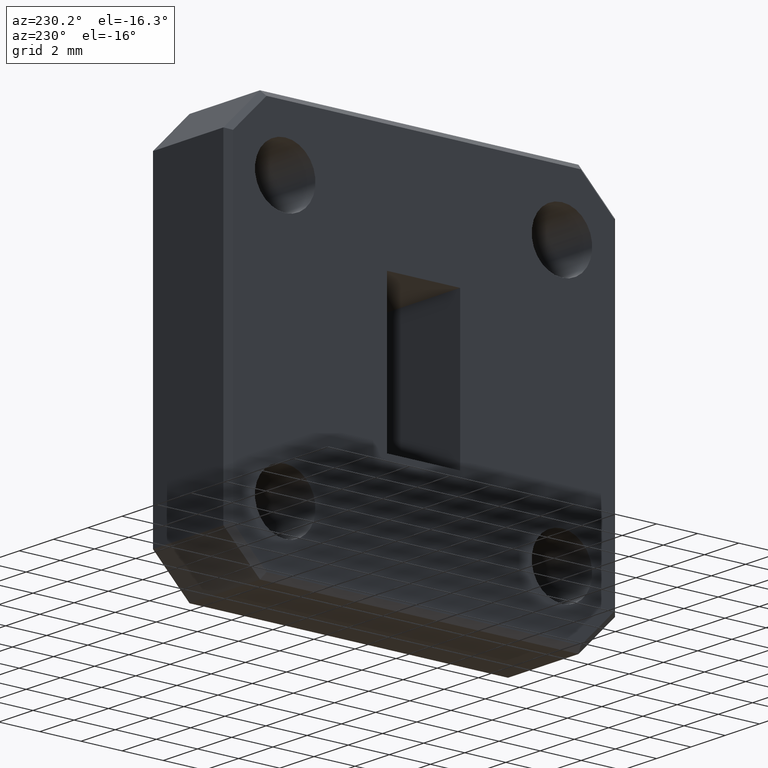
[diagram: clean part render]
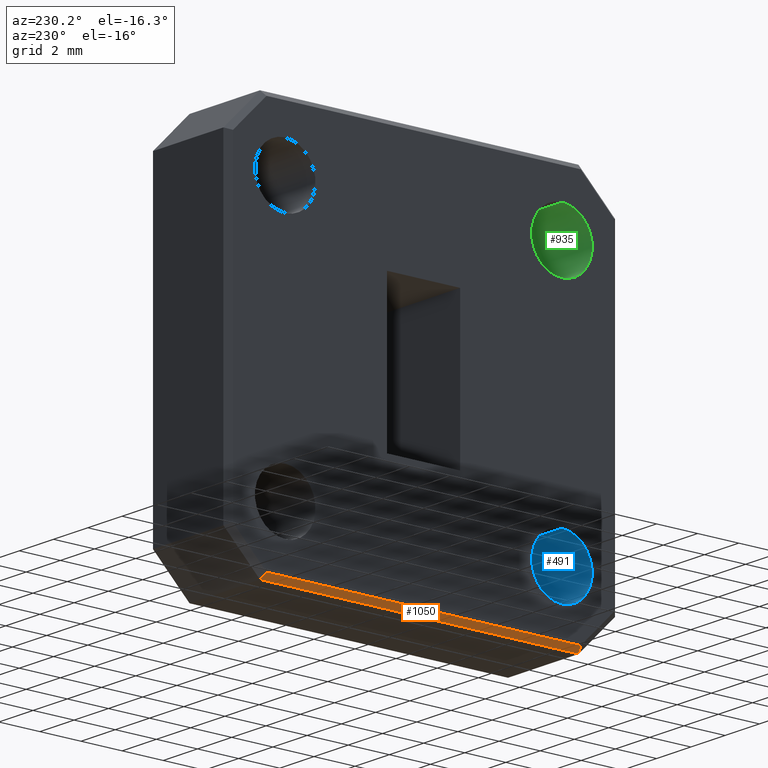
[diagram: same view with three faces highlighted in distinct colors, each labeled with its STEP entity id]
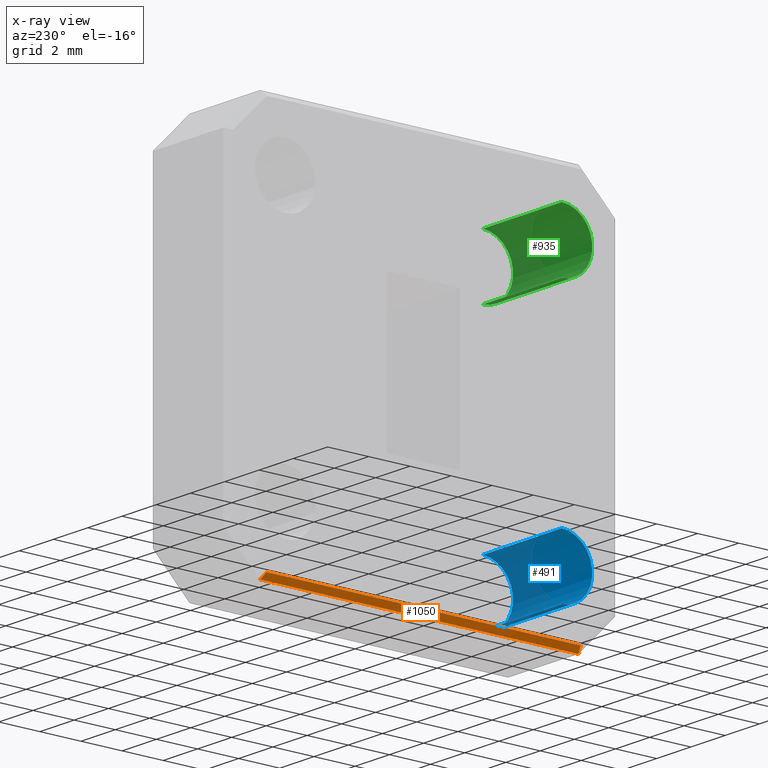
[diagram: x-ray of the same camera — body ghosted, the three highlighted faces saturated]
A machine part, auxiliary view with three faces highlighted in distinct colors.
The next image is the same camera in x-ray (body ghosted, the three faces saturated) — at least one of them is partly hidden behind the body in this view.
Their STEP definitions:

[orange] entity #1050 — the highlighted planar face has unit normal (0.7071, 0, 0.7071).
#3 = CARTESIAN_POINT ( 'NONE',  ( 0.009999999999999892700, -0.3750000000000000600, -0.3749999999999999400 ) ) ;
#56 = VECTOR ( 'NONE', #811, 39.37007874015748100 ) ;
#73 = LINE ( 'NONE', #366, #56 ) ;
#89 = CARTESIAN_POINT ( 'NONE',  ( 0.0000000000000000000, 0.3008578643762690500, -0.3649999999999999400 ) ) ;
#106 = DIRECTION ( 'NONE',  ( 0.0000000000000000000, -1.000000000000000000, 0.0000000000000000000 ) ) ;
#125 = EDGE_CURVE ( 'NONE', #1037, #304, #586, .T. ) ;
#156 = EDGE_CURVE ( 'NONE', #818, #496, #956, .T. ) ;
#168 = LINE ( 'NONE', #728, #1010 ) ;
#232 = CARTESIAN_POINT ( 'NONE',  ( 0.02335204988813799700, -0.3105306001491494100, -0.3883520498881382600 ) ) ;
#304 = VERTEX_POINT ( 'NONE', #512 ) ;
#322 = CARTESIAN_POINT ( 'NONE',  ( -0.008651239283050763200, 0.2972744037338945200, -0.3563487607169490400 ) ) ;
#327 = VECTOR ( 'NONE', #1140, 39.37007874015748900 ) ;
#366 = CARTESIAN_POINT ( 'NONE',  ( 0.009999999999999892700, -0.3750000000000000600, -0.3749999999999999400 ) ) ;
#410 = DIRECTION ( 'NONE',  ( 0.6785983445458426700, 0.2810846377148190600, -0.6785983445458518800 ) ) ;
#496 = VERTEX_POINT ( 'NONE', #893 ) ;
#510 = AXIS2_PLACEMENT_3D ( 'NONE', #3, #535, #998 ) ;
#512 = CARTESIAN_POINT ( 'NONE',  ( 0.009999999999999892700, 0.3049999999999999400, -0.3749999999999999400 ) ) ;
#535 = DIRECTION ( 'NONE',  ( 0.7071067811865523500, 0.0000000000000000000, 0.7071067811865426900 ) ) ;
#579 = EDGE_LOOP ( 'NONE', ( #682, #729, #594, #985 ) ) ;
#586 = LINE ( 'NONE', #322, #1028 ) ;
#594 = ORIENTED_EDGE ( 'NONE', *, *, #156, .F. ) ;
#631 = EDGE_CURVE ( 'NONE', #1037, #818, #168, .T. ) ;
#661 = CARTESIAN_POINT ( 'NONE',  ( 0.0000000000000000000, -0.3008578643762693800, -0.3649999999999999400 ) ) ;
#682 = ORIENTED_EDGE ( 'NONE', *, *, #125, .T. ) ;
#728 = CARTESIAN_POINT ( 'NONE',  ( 0.0000000000000000000, -0.0000000000000000000, -0.3649999999999999400 ) ) ;
#729 = ORIENTED_EDGE ( 'NONE', *, *, #1044, .F. ) ;
#811 = DIRECTION ( 'NONE',  ( 0.0000000000000000000, 1.000000000000000000, 0.0000000000000000000 ) ) ;
#818 = VERTEX_POINT ( 'NONE', #661 ) ;
#893 = CARTESIAN_POINT ( 'NONE',  ( 0.009999999999999892700, -0.3050000000000003800, -0.3749999999999999400 ) ) ;
#956 = LINE ( 'NONE', #232, #327 ) ;
#985 = ORIENTED_EDGE ( 'NONE', *, *, #631, .F. ) ;
#998 = DIRECTION ( 'NONE',  ( 0.0000000000000000000, 1.000000000000000000, -0.0000000000000000000 ) ) ;
#1004 = PLANE ( 'NONE',  #510 ) ;
#1010 = VECTOR ( 'NONE', #106, 39.37007874015748100 ) ;
#1028 = VECTOR ( 'NONE', #410, 39.37007874015748100 ) ;
#1037 = VERTEX_POINT ( 'NONE', #89 ) ;
#1044 = EDGE_CURVE ( 'NONE', #496, #304, #73, .T. ) ;
#1050 = ADVANCED_FACE ( 'NONE', ( #1186 ), #1004, .F. ) ;
#1140 = DIRECTION ( 'NONE',  ( 0.6785983445458422200, -0.2810846377148207800, -0.6785983445458514400 ) ) ;
#1186 = FACE_OUTER_BOUND ( 'NONE', #579, .T. ) ;

[blue] entity #491 — the highlighted cylindrical surface (partial cylindrical patch) has radius 1.4732 mm, axis along (1, -0, -0).
#44 = VERTEX_POINT ( 'NONE', #755 ) ;
#75 = DIRECTION ( 'NONE',  ( 1.000000000000000000, -0.0000000000000000000, -0.0000000000000000000 ) ) ;
#88 = FACE_OUTER_BOUND ( 'NONE', #293, .T. ) ;
#118 = AXIS2_PLACEMENT_3D ( 'NONE', #501, #75, #693 ) ;
#152 = AXIS2_PLACEMENT_3D ( 'NONE', #721, #353, #1163 ) ;
#175 = DIRECTION ( 'NONE',  ( 1.000000000000000000, -0.0000000000000000000, 0.0000000000000000000 ) ) ;
#190 = CARTESIAN_POINT ( 'NONE',  ( 0.0000000000000000000, -0.2650000000000000100, -0.2500000000000000000 ) ) ;
#293 = EDGE_LOOP ( 'NONE', ( #373, #1143, #377, #859 ) ) ;
#353 = DIRECTION ( 'NONE',  ( 1.000000000000000000, -0.0000000000000000000, -0.0000000000000000000 ) ) ;
#373 = ORIENTED_EDGE ( 'NONE', *, *, #1058, .F. ) ;
#377 = ORIENTED_EDGE ( 'NONE', *, *, #799, .T. ) ;
#397 = CARTESIAN_POINT ( 'NONE',  ( 0.1820000000000000800, -0.2650000000000000100, -0.1920000000000005000 ) ) ;
#453 = CARTESIAN_POINT ( 'NONE',  ( 0.1820000000000000000, -0.2650000000000000100, -0.1920000000000002500 ) ) ;
#477 = CIRCLE ( 'NONE', #118, 0.05799999999999948900 ) ;
#491 = ADVANCED_FACE ( 'NONE', ( #88 ), #664, .F. ) ;
#501 = CARTESIAN_POINT ( 'NONE',  ( 0.1820000000000000800, -0.2650000000000000100, -0.2500000000000000000 ) ) ;
#532 = VECTOR ( 'NONE', #1064, 39.37007874015748100 ) ;
#536 = VECTOR ( 'NONE', #994, 39.37007874015748100 ) ;
#642 = CARTESIAN_POINT ( 'NONE',  ( 0.1820000000000000800, -0.2650000000000000100, -0.3079999999999995000 ) ) ;
#664 = CYLINDRICAL_SURFACE ( 'NONE', #152, 0.05799999999999969800 ) ;
#693 = DIRECTION ( 'NONE',  ( 0.0000000000000000000, 0.0000000000000000000, -1.000000000000000000 ) ) ;
#721 = CARTESIAN_POINT ( 'NONE',  ( 0.1820000000000000000, -0.2650000000000000100, -0.2500000000000000000 ) ) ;
#755 = CARTESIAN_POINT ( 'NONE',  ( 0.0000000000000000000, -0.2650000000000000100, -0.1920000000000002500 ) ) ;
#767 = AXIS2_PLACEMENT_3D ( 'NONE', #190, #175, #1091 ) ;
#776 = LINE ( 'NONE', #971, #532 ) ;
#786 = VERTEX_POINT ( 'NONE', #397 ) ;
#799 = EDGE_CURVE ( 'NONE', #786, #1160, #477, .T. ) ;
#829 = EDGE_CURVE ( 'NONE', #873, #1160, #776, .T. ) ;
#859 = ORIENTED_EDGE ( 'NONE', *, *, #829, .F. ) ;
#873 = VERTEX_POINT ( 'NONE', #1166 ) ;
#883 = LINE ( 'NONE', #453, #536 ) ;
#971 = CARTESIAN_POINT ( 'NONE',  ( 0.1820000000000000000, -0.2650000000000000100, -0.3079999999999997200 ) ) ;
#994 = DIRECTION ( 'NONE',  ( 1.000000000000000000, -0.0000000000000000000, -0.0000000000000000000 ) ) ;
#1000 = EDGE_CURVE ( 'NONE', #44, #786, #883, .T. ) ;
#1042 = CIRCLE ( 'NONE', #767, 0.05799999999999969800 ) ;
#1058 = EDGE_CURVE ( 'NONE', #44, #873, #1042, .T. ) ;
#1064 = DIRECTION ( 'NONE',  ( 1.000000000000000000, -0.0000000000000000000, -0.0000000000000000000 ) ) ;
#1091 = DIRECTION ( 'NONE',  ( 0.0000000000000000000, 0.0000000000000000000, -1.000000000000000000 ) ) ;
#1143 = ORIENTED_EDGE ( 'NONE', *, *, #1000, .T. ) ;
#1160 = VERTEX_POINT ( 'NONE', #642 ) ;
#1163 = DIRECTION ( 'NONE',  ( 0.0000000000000000000, 0.0000000000000000000, -1.000000000000000000 ) ) ;
#1166 = CARTESIAN_POINT ( 'NONE',  ( 0.0000000000000000000, -0.2650000000000000100, -0.3079999999999997200 ) ) ;

[green] entity #935 — the highlighted cylindrical surface (partial cylindrical patch) has radius 1.4732 mm, axis along (1, -0, -0).
#18 = CARTESIAN_POINT ( 'NONE',  ( 0.0000000000000000000, -0.2650000000000000100, 0.1920000000000002500 ) ) ;
#53 = VECTOR ( 'NONE', #700, 39.37007874015748100 ) ;
#87 = CARTESIAN_POINT ( 'NONE',  ( 0.1820000000000000000, -0.2650000000000000100, 0.1920000000000002500 ) ) ;
#97 = AXIS2_PLACEMENT_3D ( 'NONE', #424, #505, #1161 ) ;
#98 = EDGE_LOOP ( 'NONE', ( #276, #768, #988, #1046 ) ) ;
#173 = DIRECTION ( 'NONE',  ( 1.000000000000000000, -0.0000000000000000000, -0.0000000000000000000 ) ) ;
#176 = AXIS2_PLACEMENT_3D ( 'NONE', #274, #923, #1187 ) ;
#207 = CARTESIAN_POINT ( 'NONE',  ( 0.1820000000000000800, -0.2650000000000000100, 0.3079999999999995000 ) ) ;
#252 = CIRCLE ( 'NONE', #176, 0.05799999999999948900 ) ;
#274 = CARTESIAN_POINT ( 'NONE',  ( 0.1820000000000000800, -0.2650000000000000100, 0.2500000000000000000 ) ) ;
#276 = ORIENTED_EDGE ( 'NONE', *, *, #531, .F. ) ;
#331 = EDGE_CURVE ( 'NONE', #542, #499, #450, .T. ) ;
#424 = CARTESIAN_POINT ( 'NONE',  ( 0.1820000000000000000, -0.2650000000000000100, 0.2500000000000000000 ) ) ;
#439 = EDGE_CURVE ( 'NONE', #1073, #1162, #1139, .T. ) ;
#450 = LINE ( 'NONE', #87, #53 ) ;
#455 = DIRECTION ( 'NONE',  ( 1.000000000000000000, -0.0000000000000000000, 0.0000000000000000000 ) ) ;
#463 = CARTESIAN_POINT ( 'NONE',  ( 0.0000000000000000000, -0.2650000000000000100, 0.2500000000000000000 ) ) ;
#480 = FACE_OUTER_BOUND ( 'NONE', #98, .T. ) ;
#499 = VERTEX_POINT ( 'NONE', #1071 ) ;
#505 = DIRECTION ( 'NONE',  ( 1.000000000000000000, -0.0000000000000000000, -0.0000000000000000000 ) ) ;
#531 = EDGE_CURVE ( 'NONE', #1073, #542, #546, .T. ) ;
#542 = VERTEX_POINT ( 'NONE', #18 ) ;
#546 = CIRCLE ( 'NONE', #1075, 0.05799999999999973200 ) ;
#632 = CARTESIAN_POINT ( 'NONE',  ( 0.0000000000000000000, -0.2650000000000000100, 0.3079999999999997700 ) ) ;
#641 = EDGE_CURVE ( 'NONE', #1162, #499, #252, .T. ) ;
#700 = DIRECTION ( 'NONE',  ( 1.000000000000000000, -0.0000000000000000000, -0.0000000000000000000 ) ) ;
#768 = ORIENTED_EDGE ( 'NONE', *, *, #439, .T. ) ;
#826 = DIRECTION ( 'NONE',  ( 0.0000000000000000000, 0.0000000000000000000, -1.000000000000000000 ) ) ;
#896 = VECTOR ( 'NONE', #173, 39.37007874015748100 ) ;
#911 = CARTESIAN_POINT ( 'NONE',  ( 0.1820000000000000000, -0.2650000000000000100, 0.3079999999999997200 ) ) ;
#916 = CYLINDRICAL_SURFACE ( 'NONE', #97, 0.05799999999999973200 ) ;
#923 = DIRECTION ( 'NONE',  ( 1.000000000000000000, -0.0000000000000000000, -0.0000000000000000000 ) ) ;
#935 = ADVANCED_FACE ( 'NONE', ( #480 ), #916, .F. ) ;
#988 = ORIENTED_EDGE ( 'NONE', *, *, #641, .T. ) ;
#1046 = ORIENTED_EDGE ( 'NONE', *, *, #331, .F. ) ;
#1071 = CARTESIAN_POINT ( 'NONE',  ( 0.1820000000000000800, -0.2650000000000000100, 0.1920000000000005000 ) ) ;
#1073 = VERTEX_POINT ( 'NONE', #632 ) ;
#1075 = AXIS2_PLACEMENT_3D ( 'NONE', #463, #455, #826 ) ;
#1139 = LINE ( 'NONE', #911, #896 ) ;
#1161 = DIRECTION ( 'NONE',  ( 0.0000000000000000000, 0.0000000000000000000, -1.000000000000000000 ) ) ;
#1162 = VERTEX_POINT ( 'NONE', #207 ) ;
#1187 = DIRECTION ( 'NONE',  ( 0.0000000000000000000, 0.0000000000000000000, -1.000000000000000000 ) ) ;